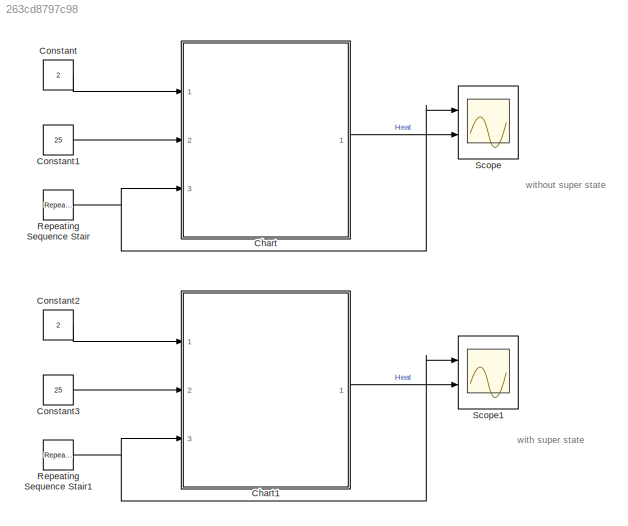
MODEL slx_263cd8797c98
KIND model
CONFIG AbsTol = auto
CONFIG EnableMultiTasking = off
CONFIG FixedStep = auto
CONFIG MaxStep = auto
CONFIG MinStep = auto
CONFIG RelTol = 1e-3
CONFIG SampleTimeConstraint = Unconstrained
CONFIG Solver = VariableStepAuto
CONFIG SolverName = VariableStepAuto
CONFIG StartTime = 0.0
CONFIG StopTime = 10.0
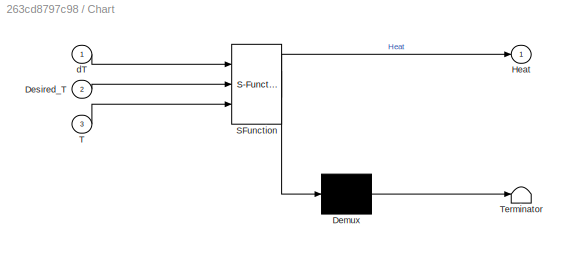
BLOCK [SubSystem] Chart
  ErrorFcn = Stateflow.Translate.translate
  PermitHierarchicalResolution = ExplicitOnly
  Ports = [3, 1]
  RequestExecContextInheritance = off
  SFBlockType = Chart
  TreatAsAtomicUnit = on
BLOCK [Demux] Chart/ Demux 
  Outputs = 1
  Ports = [1, 1]
BLOCK [S-Function] Chart/ SFunction 
  EnableBusSupport = on
  FunctionName = sf_sfun
  PortCounts = [3 2]
  Ports = [3, 2]
  SFcnIsStateOwnerBlock = off
  SFunctionDeploymentMode = off
  Tag = Stateflow S-Function ClimateControl_with_SuperStep 3
BLOCK [Terminator] Chart/ Terminator 
BLOCK [Inport] Chart/Desired_T
  IconDisplay = Port number
  Port = 2
BLOCK [Outport] Chart/Heat
  IconDisplay = Port number
BLOCK [Inport] Chart/T
  IconDisplay = Port number
  Port = 3
BLOCK [Inport] Chart/dT
  IconDisplay = Port number
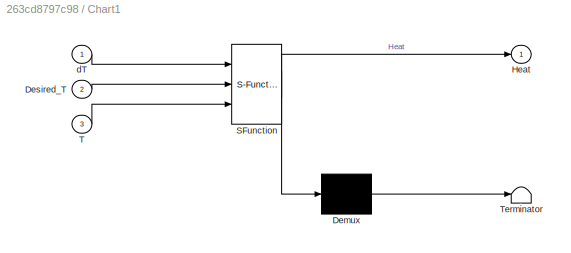
BLOCK [SubSystem] Chart1
  ErrorFcn = Stateflow.Translate.translate
  PermitHierarchicalResolution = ExplicitOnly
  Ports = [3, 1]
  RequestExecContextInheritance = off
  SFBlockType = Chart
  TreatAsAtomicUnit = on
BLOCK [Demux] Chart1/ Demux 
  Outputs = 1
  Ports = [1, 1]
BLOCK [S-Function] Chart1/ SFunction 
  EnableBusSupport = on
  FunctionName = sf_sfun
  PortCounts = [3 2]
  Ports = [3, 2]
  SFcnIsStateOwnerBlock = off
  SFunctionDeploymentMode = off
  Tag = Stateflow S-Function ClimateControl_with_SuperStep 1
BLOCK [Terminator] Chart1/ Terminator 
BLOCK [Inport] Chart1/Desired_T
  IconDisplay = Port number
  Port = 2
BLOCK [Outport] Chart1/Heat
  IconDisplay = Port number
BLOCK [Inport] Chart1/T
  IconDisplay = Port number
  Port = 3
BLOCK [Inport] Chart1/dT
  IconDisplay = Port number
BLOCK [Constant] Constant
  Value = 2
BLOCK [Constant] Constant1
  Value = 25
BLOCK [Constant] Constant2
  Value = 2
BLOCK [Constant] Constant3
  Value = 25
BLOCK [Reference] Repeating Sequence Stair  REF=simulink/Sources/Repeating
Sequence
Stair
  Ports = [0, 1]
  SourceBlock = simulink/Sources/Repeating\nSequence\nStair
  SourceProductBaseCode = SL
  SourceProductName = Simulink
  SourceType = Repeating Sequence Stair
BLOCK [Reference] Repeating Sequence Stair1  REF=simulink/Sources/Repeating
Sequence
Stair
  Ports = [0, 1]
  SourceBlock = simulink/Sources/Repeating\nSequence\nStair
  SourceProductBaseCode = SL
  SourceProductName = Simulink
  SourceType = Repeating Sequence Stair
BLOCK [Scope] Scope
  Floating = off
  NumInputPorts = 2
  Ports = [2]
  ScopeSpecificationString = Simulink.scopes.TimeScopeBlockCfg('CurrentConfiguration', extmgr.ConfigurationSet(extmgr.Configuration('Core','General UI',true),extmgr.Configuration('Core','Source UI',true),extmgr.Configuration('Sources','WiredSimulink',true),extmgr.Configuration('Visuals','Time Domain',true,'SerializedDisplays',{struct('MinYLimReal','-4.875','MaxYLimReal','33.875','YLabelReal','','MinYLimMag','0.00000','MaxYLim...<+1472ch>
BLOCK [Scope] Scope1
  Floating = off
  NumInputPorts = 2
  Ports = [2]
  ScopeSpecificationString = Simulink.scopes.TimeScopeBlockCfg('CurrentConfiguration', extmgr.ConfigurationSet(extmgr.Configuration('Core','General UI',true),extmgr.Configuration('Core','Source UI',true),extmgr.Configuration('Sources','WiredSimulink',true,'DataLoggingVariableName','ScopeData1'),extmgr.Configuration('Visuals','Time Domain',true,'SerializedDisplays',{struct('MinYLimReal','-4.875','MaxYLimReal','33.875','YLabelR...<+1514ch>
ANNOTATION (root): with super state
ANNOTATION (root): without super state
LINE Chart1:1 -> Scope1:2
LINE Chart:1 -> Scope:2
LINE Constant1:1 -> Chart:2
LINE Constant2:1 -> Chart1:1
LINE Constant3:1 -> Chart1:2
LINE Constant:1 -> Chart:1
NET Repeating Sequence Stair1:1 -> Chart1:3, Scope1:1
NET Repeating Sequence Stair:1 -> Chart:3, Scope:1
note: NET lines group one-source signal fan-out (src -> all destinations, sorted); 1:1 wires keep LINE
CHART Chart1 states=3 transitions=6
  STATE_LABEL 'Off\nentry:\nHeat=0;'
  STATE_LABEL 'ColerOn\nentry:\nHeat=-1;'
  STATE_LABEL 'HeaterOn1\nentry:\nHeat=1;'
CHART Chart states=3 transitions=8
  STATE_LABEL 'Off\nentry:\nHeat=0;'
  STATE_LABEL 'ColerOn\nentry:\nHeat=-1;'
  STATE_LABEL 'HeaterOn1\nentry:\nHeat=1;'
